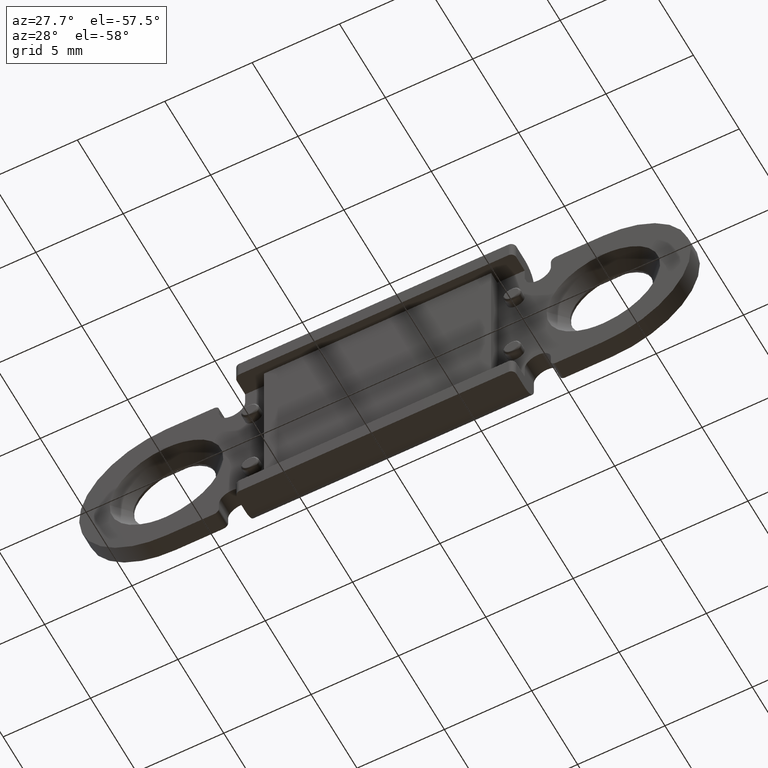
[diagram: clean part render]
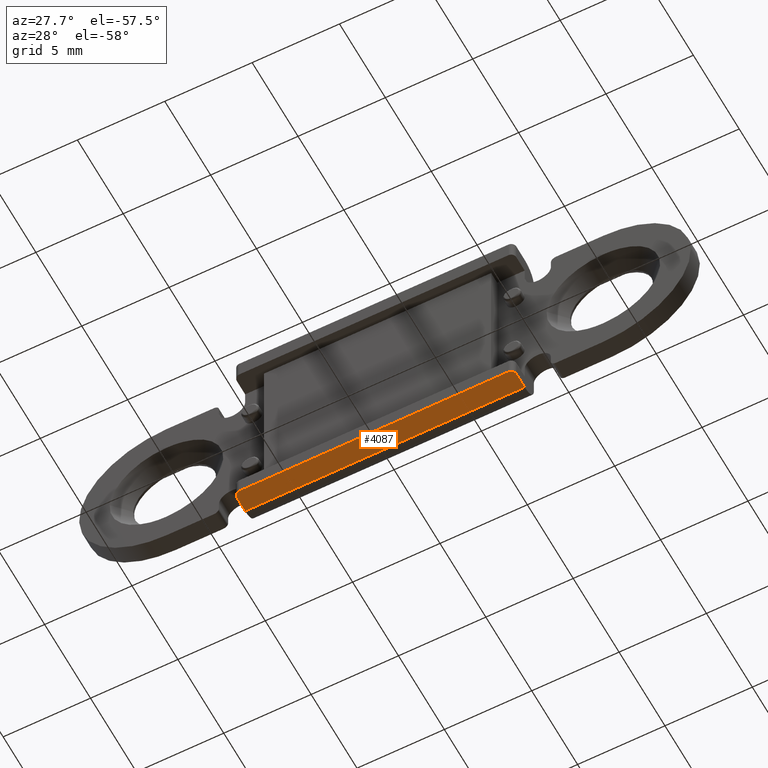
[diagram: same view with one face highlighted and labeled with its STEP entity id]
A machine part, auxiliary view. The second image highlights one B-rep face of the part: STEP entity #4087.
In plain terms, the highlighted face is a freeform B-spline surface patch.
Its self-contained STEP definition (entity closure, byte-faithful):
#3418=CARTESIAN_POINT('',(8.0,-1.0,-6.0));
#3419=VERTEX_POINT('',#3418);
#3435=CARTESIAN_POINT('',(-8.0,-1.0,-6.0));
#3436=VERTEX_POINT('',#3435);
#3437=CARTESIAN_POINT('',(-8.0,-1.0,-6.0));
#3438=CARTESIAN_POINT('',(8.0,-1.0,-6.0));
#3439=QUASI_UNIFORM_CURVE('',1,(#3437,#3438),.UNSPECIFIED.,.F.,.U.);
#3440=EDGE_CURVE('',#3436,#3419,#3439,.T.);
#3662=CARTESIAN_POINT('',(8.0,-1.900000000000125,-6.0));
#3663=VERTEX_POINT('',#3662);
#3664=CARTESIAN_POINT('',(7.700000000000000,-2.200000000000090,-6.0));
#3665=VERTEX_POINT('',#3664);
#3666=CARTESIAN_POINT('',(8.0,-1.900000000000105,-6.0));
#3667=CARTESIAN_POINT('',(8.0,-2.200000000000105,-6.0));
#3668=CARTESIAN_POINT('',(7.700000000000000,-2.200000000000105,-6.0));
#3676=(BOUNDED_CURVE()B_SPLINE_CURVE(2,(#3666,#3667,#3668),.UNSPECIFIED.,.F.,.U.)CURVE()GEOMETRIC_REPRESENTATION_ITEM()QUASI_UNIFORM_CURVE()RATIONAL_B_SPLINE_CURVE((1.0,0.707106781186547,1.0))REPRESENTATION_ITEM(''));
#3677=EDGE_CURVE('',#3663,#3665,#3676,.T.);
#3740=CARTESIAN_POINT('',(-8.0,-1.900000000000125,-6.0));
#3741=VERTEX_POINT('',#3740);
#3747=CARTESIAN_POINT('',(-7.700000000000000,-2.200000000000090,-6.0));
#3748=VERTEX_POINT('',#3747);
#3749=CARTESIAN_POINT('',(-7.700000000000000,-2.200000000000105,-6.0));
#3750=CARTESIAN_POINT('',(-8.0,-2.200000000000105,-6.0));
#3751=CARTESIAN_POINT('',(-8.0,-1.900000000000105,-6.0));
#3759=(BOUNDED_CURVE()B_SPLINE_CURVE(2,(#3749,#3750,#3751),.UNSPECIFIED.,.F.,.U.)CURVE()GEOMETRIC_REPRESENTATION_ITEM()QUASI_UNIFORM_CURVE()RATIONAL_B_SPLINE_CURVE((1.0,0.707106781186547,1.0))REPRESENTATION_ITEM(''));
#3760=EDGE_CURVE('',#3748,#3741,#3759,.T.);
#3823=CARTESIAN_POINT('',(-7.700000000000000,-2.200000000000090,-6.0));
#3824=CARTESIAN_POINT('',(7.700000000000000,-2.200000000000090,-6.0));
#3825=QUASI_UNIFORM_CURVE('',1,(#3823,#3824),.UNSPECIFIED.,.F.,.U.);
#3826=EDGE_CURVE('',#3748,#3665,#3825,.T.);
#4058=CARTESIAN_POINT('',(-8.0,-1.900000000000125,-6.0));
#4059=CARTESIAN_POINT('',(-8.0,-1.0,-6.0));
#4060=QUASI_UNIFORM_CURVE('',1,(#4058,#4059),.UNSPECIFIED.,.F.,.U.);
#4061=EDGE_CURVE('',#3741,#3436,#4060,.T.);
#4070=CARTESIAN_POINT('',(8.799199968988896,-2.259939997674262,-6.0));
#4071=CARTESIAN_POINT('',(-8.799200398142338,-2.259939997674262,-6.0));
#4072=CARTESIAN_POINT('',(8.799199968988896,-0.940059970139320,-6.0));
#4073=CARTESIAN_POINT('',(-8.799200398142338,-0.940059970139320,-6.0));
#4074=B_SPLINE_SURFACE_WITH_KNOTS('',1,1,((#4070,#4072),(#4071,#4073)),.UNSPECIFIED.,.F.,.F.,.U.,(2,2),(2,2),(0.0,17.598400367131230),(0.041708334948495,0.958291687403247),.UNSPECIFIED.);
#4075=ORIENTED_EDGE('',*,*,#4061,.T.);
#4076=ORIENTED_EDGE('',*,*,#3440,.T.);
#4077=CARTESIAN_POINT('',(8.0,-1.900000000000125,-6.0));
#4078=CARTESIAN_POINT('',(8.0,-1.0,-6.0));
#4079=QUASI_UNIFORM_CURVE('',1,(#4077,#4078),.UNSPECIFIED.,.F.,.U.);
#4080=EDGE_CURVE('',#3663,#3419,#4079,.T.);
#4081=ORIENTED_EDGE('',*,*,#4080,.F.);
#4082=ORIENTED_EDGE('',*,*,#3677,.T.);
#4083=ORIENTED_EDGE('',*,*,#3826,.F.);
#4084=ORIENTED_EDGE('',*,*,#3760,.T.);
#4085=EDGE_LOOP('',(#4075,#4076,#4081,#4082,#4083,#4084));
#4086=FACE_OUTER_BOUND('',#4085,.T.);
#4087=ADVANCED_FACE('',(#4086),#4074,.T.);